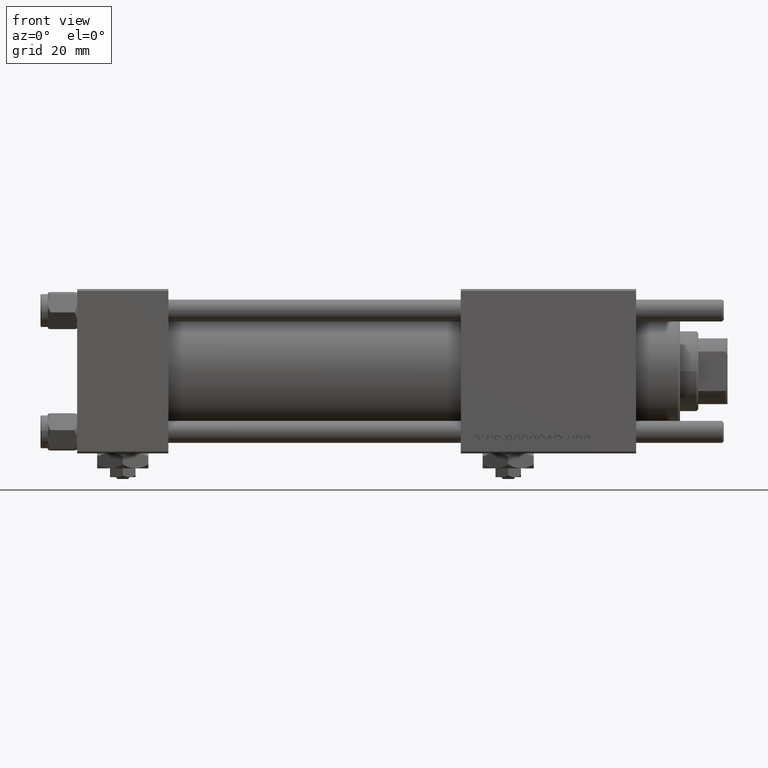
[diagram: clean part render]
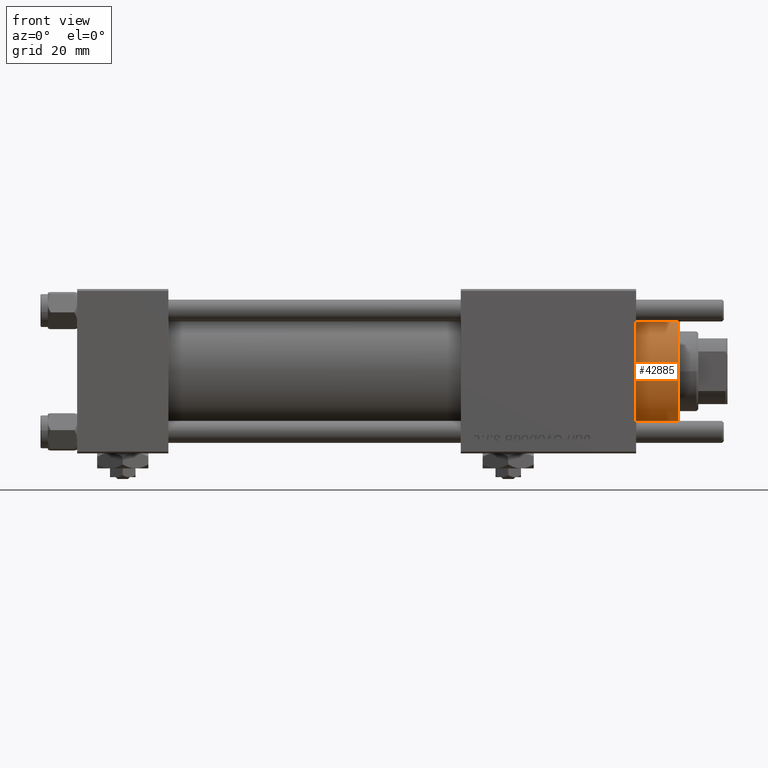
[diagram: same view with one face highlighted and labeled with its STEP entity id]
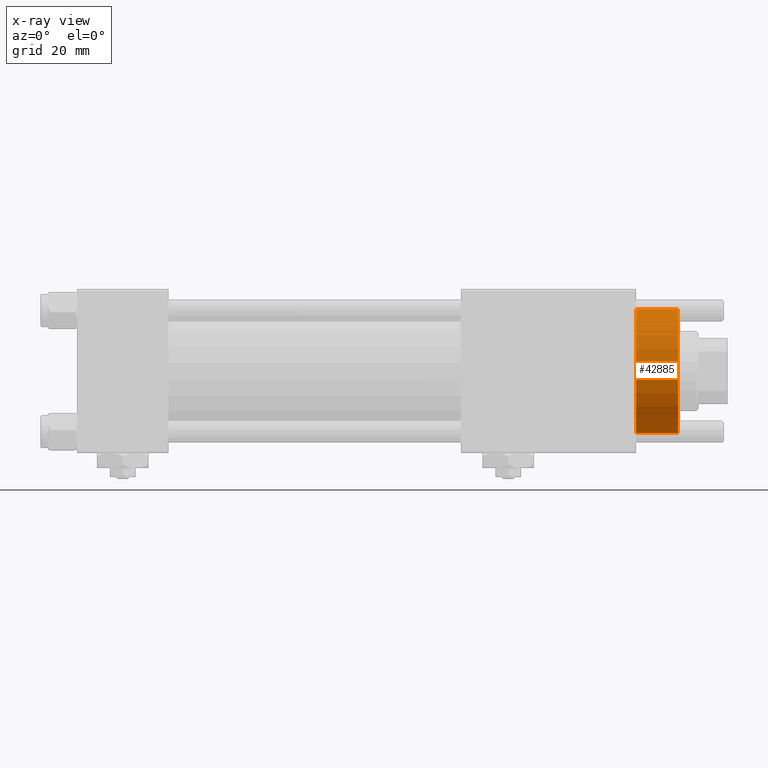
[diagram: x-ray of the same camera — body ghosted, the highlighted face saturated]
A machine part, front view. The second image highlights one B-rep face of the part: STEP entity #42885.
The next image is the same camera in x-ray: the body ghosted, the highlighted face saturated — about 0% of this face is hidden behind the body in this view.
In plain terms, the highlighted cylindrical surface (partial cylindrical patch) has radius 17 mm, axis along (-1, -0, 0).
Its self-contained STEP definition (entity closure, byte-faithful):
#731 = EDGE_CURVE ( 'NONE', #11735, #19417, #12567, .T. ) ;
#1352 = VERTEX_POINT ( 'NONE', #52319 ) ;
#5702 = ORIENTED_EDGE ( 'NONE', *, *, #31673, .T. ) ;
#7071 = EDGE_CURVE ( 'NONE', #57382, #1352, #23987, .T. ) ;
#7138 = CIRCLE ( 'NONE', #47052, 17.00000000000000000 ) ;
#11735 = VERTEX_POINT ( 'NONE', #57701 ) ;
#12567 = LINE ( 'NONE', #58683, #15825 ) ;
#15825 = VECTOR ( 'NONE', #53634, 1000.000000000000000 ) ;
#15972 = DIRECTION ( 'NONE',  ( -0.000000000000000000, -0.000000000000000000, -1.000000000000000000 ) ) ;
#19417 = VERTEX_POINT ( 'NONE', #41029 ) ;
#19823 = FACE_OUTER_BOUND ( 'NONE', #47487, .T. ) ;
#20265 = AXIS2_PLACEMENT_3D ( 'NONE', #38590, #15972, #56129 ) ;
#20422 = CYLINDRICAL_SURFACE ( 'NONE', #20265, 17.00000000000000000 ) ;
#20588 = ORIENTED_EDGE ( 'NONE', *, *, #40833, .T. ) ;
#23015 = DIRECTION ( 'NONE',  ( 1.000000000000000000, 0.000000000000000000, 0.000000000000000000 ) ) ;
#23887 = ORIENTED_EDGE ( 'NONE', *, *, #7071, .F. ) ;
#23987 = LINE ( 'NONE', #24276, #41587 ) ;
#24276 = CARTESIAN_POINT ( 'NONE',  ( 17.00000000000000000, 2.081899558550500280E-15, 40.70000000000000284 ) ) ;
#28307 = CARTESIAN_POINT ( 'NONE',  ( 0.000000000000000000, 0.000000000000000000, 28.69999999999999929 ) ) ;
#31673 = EDGE_CURVE ( 'NONE', #57382, #11735, #7138, .T. ) ;
#36122 = CARTESIAN_POINT ( 'NONE',  ( 0.000000000000000000, 0.000000000000000000, 40.19999999999999574 ) ) ;
#36448 = AXIS2_PLACEMENT_3D ( 'NONE', #28307, #37542, #36678 ) ;
#36678 = DIRECTION ( 'NONE',  ( 1.000000000000000000, 0.000000000000000000, 0.000000000000000000 ) ) ;
#37542 = DIRECTION ( 'NONE',  ( 0.000000000000000000, 0.000000000000000000, 1.000000000000000000 ) ) ;
#38590 = CARTESIAN_POINT ( 'NONE',  ( 0.000000000000000000, 0.000000000000000000, 40.70000000000000284 ) ) ;
#40833 = EDGE_CURVE ( 'NONE', #19417, #1352, #58266, .T. ) ;
#41029 = CARTESIAN_POINT ( 'NONE',  ( -17.00000000000000000, 0.000000000000000000, 28.69999999999999929 ) ) ;
#41587 = VECTOR ( 'NONE', #46049, 1000.000000000000000 ) ;
#42150 = CARTESIAN_POINT ( 'NONE',  ( 17.00000000000000000, 2.081899558550500280E-15, 40.19999999999999574 ) ) ;
#42885 = ADVANCED_FACE ( 'NONE', ( #19823 ), #20422, .T. ) ;
#45641 = DIRECTION ( 'NONE',  ( 0.000000000000000000, 0.000000000000000000, -1.000000000000000000 ) ) ;
#46049 = DIRECTION ( 'NONE',  ( -0.000000000000000000, -0.000000000000000000, -1.000000000000000000 ) ) ;
#47052 = AXIS2_PLACEMENT_3D ( 'NONE', #36122, #45641, #23015 ) ;
#47487 = EDGE_LOOP ( 'NONE', ( #23887, #5702, #51121, #20588 ) ) ;
#51121 = ORIENTED_EDGE ( 'NONE', *, *, #731, .T. ) ;
#52319 = CARTESIAN_POINT ( 'NONE',  ( 17.00000000000000000, 2.081899558550500280E-15, 28.69999999999999929 ) ) ;
#53634 = DIRECTION ( 'NONE',  ( -0.000000000000000000, -0.000000000000000000, -1.000000000000000000 ) ) ;
#56129 = DIRECTION ( 'NONE',  ( -1.000000000000000000, 0.000000000000000000, 0.000000000000000000 ) ) ;
#57382 = VERTEX_POINT ( 'NONE', #42150 ) ;
#57701 = CARTESIAN_POINT ( 'NONE',  ( -17.00000000000000000, 0.000000000000000000, 40.19999999999999574 ) ) ;
#58266 = CIRCLE ( 'NONE', #36448, 17.00000000000000000 ) ;
#58683 = CARTESIAN_POINT ( 'NONE',  ( -17.00000000000000000, 0.000000000000000000, 40.70000000000000284 ) ) ;